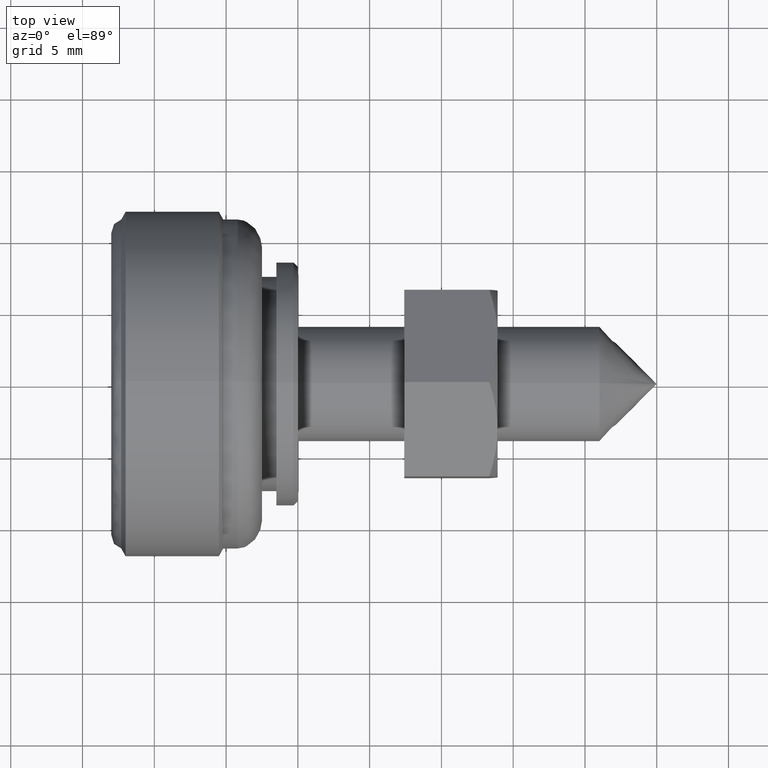
[diagram: clean part render]
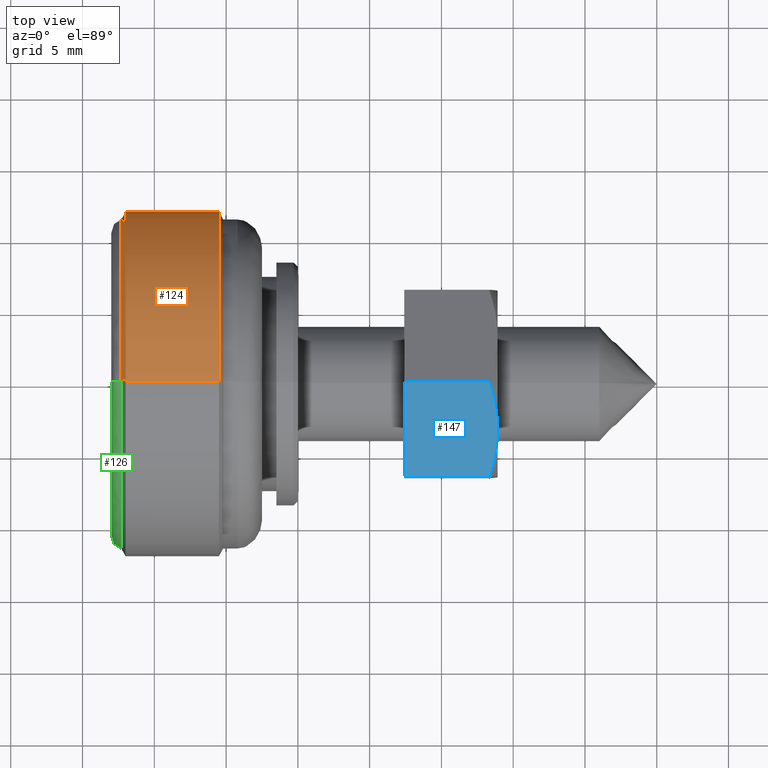
[diagram: same view with three faces highlighted in distinct colors, each labeled with its STEP entity id]
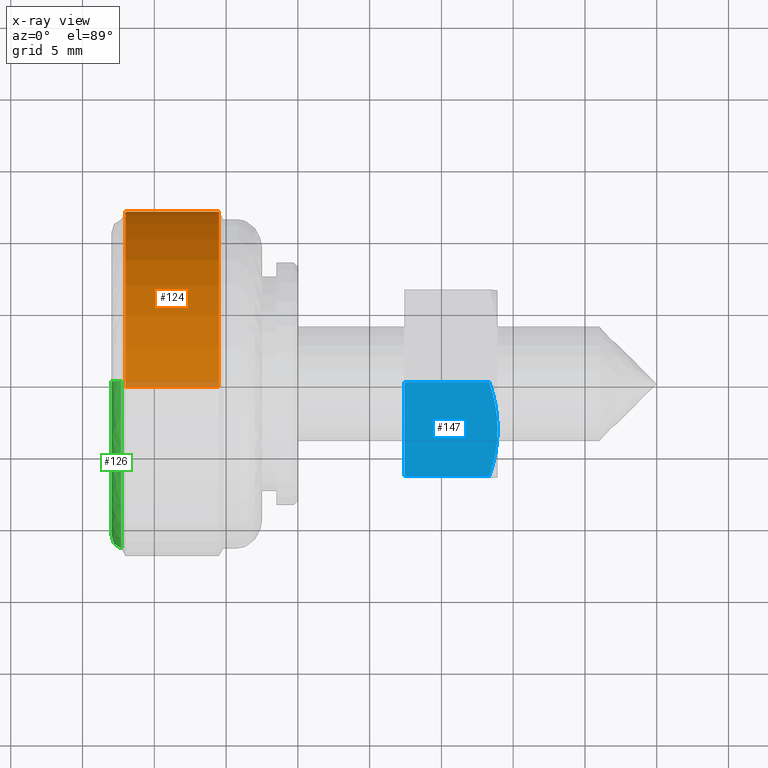
[diagram: x-ray of the same camera — body ghosted, the three highlighted faces saturated]
A machine part, top view with three faces highlighted in distinct colors.
The next image is the same camera in x-ray (body ghosted, the three faces saturated) — at least one of them is partly hidden behind the body in this view.
Their STEP definitions:

[orange] entity #124 — the highlighted cylindrical surface (partial cylindrical patch) has radius 12 mm, axis along (1, 0, 0).
#124=ADVANCED_FACE('',(#278),#277,.T.);
#277=CYLINDRICAL_SURFACE('',#711,1.20000000000E+01);
#278=FACE_OUTER_BOUND('',#712,.T.);
#708=CARTESIAN_POINT('',(0.00000000000E+00,0.00000000000E+00,0.00000000000E+00));
#709=DIRECTION('',(1.00000000000E+00,-0.00000000000E+00,-0.00000000000E+00));
#710=DIRECTION('',(-0.00000000000E+00,-0.00000000000E+00,-1.00000000000E+00));
#711=AXIS2_PLACEMENT_3D('',#708,#709,#710);
#712=EDGE_LOOP('',(#982,#983,#984,#985));
#982=ORIENTED_EDGE('',*,*,#1144,.T.);
#983=ORIENTED_EDGE('',*,*,#1145,.F.);
#984=ORIENTED_EDGE('',*,*,#1143,.F.);
#985=ORIENTED_EDGE('',*,*,#1146,.T.);
#1143=EDGE_CURVE('',#1366,#1365,#1399,.T.);
#1144=EDGE_CURVE('',#1405,#1406,#1407,.T.);
#1145=EDGE_CURVE('',#1365,#1406,#1413,.T.);
#1146=EDGE_CURVE('',#1366,#1405,#1419,.T.);
#1365=VERTEX_POINT('',#1890);
#1366=VERTEX_POINT('',#1891);
#1399=CIRCLE('',#1913,1.20000000000E+01);
#1405=VERTEX_POINT('',#1914);
#1406=VERTEX_POINT('',#1915);
#1407=CIRCLE('',#1919,1.20000000000E+01);
#1413=(BOUNDED_CURVE() B_SPLINE_CURVE(1,(#1920,#1921),.UNSPECIFIED.,.F.,.F.) B_SPLINE_CURVE_WITH_KNOTS((2,2),(8.33333347523E-02,9.16666664312E-01),.UNSPECIFIED.) CURVE() GEOMETRIC_REPRESENTATION_ITEM() RATIONAL_B_SPLINE_CURVE((1.00000000000E+00,1.00000000000E+00)) REPRESENTATION_ITEM('') );
#1419=(BOUNDED_CURVE() B_SPLINE_CURVE(1,(#1922,#1923),.UNSPECIFIED.,.F.,.F.) B_SPLINE_CURVE_WITH_KNOTS((2,2),(8.33333333333E-02,9.16666666667E-01),.UNSPECIFIED.) CURVE() GEOMETRIC_REPRESENTATION_ITEM() RATIONAL_B_SPLINE_CURVE((7.50000000000E-01,7.50000000000E-01)) REPRESENTATION_ITEM('') );
#1890=CARTESIAN_POINT('',(-3.70000000000E+01,-5.92118946467E-16,-1.20000000000E+01));
#1891=CARTESIAN_POINT('',(-3.70000000000E+01,0.00000000000E+00,1.20000000000E+01));
#1910=CARTESIAN_POINT('',(-3.70000000000E+01,0.00000000000E+00,0.00000000000E+00));
#1911=DIRECTION('',(-1.00000000000E+00,0.00000000000E+00,0.00000000000E+00));
#1912=DIRECTION('',(0.00000000000E+00,-1.22460635382E-16,1.00000000000E+00));
#1913=AXIS2_PLACEMENT_3D('',#1910,#1911,#1912);
#1914=CARTESIAN_POINT('',(-3.05000000000E+01,0.00000000000E+00,1.20000000000E+01));
#1915=CARTESIAN_POINT('',(-3.05000000000E+01,-1.29674049276E-13,-1.20000000000E+01));
#1916=CARTESIAN_POINT('',(-3.05000000000E+01,0.00000000000E+00,0.00000000000E+00));
#1917=DIRECTION('',(-1.00000000000E+00,0.00000000000E+00,0.00000000000E+00));
#1918=DIRECTION('',(0.00000000000E+00,-1.22460635382E-16,1.00000000000E+00));
#1919=AXIS2_PLACEMENT_3D('',#1916,#1917,#1918);
#1920=CARTESIAN_POINT('',(-3.69999999889E+01,0.00000000000E+00,-1.20000000000E+01));
#1921=CARTESIAN_POINT('',(-3.05000000184E+01,0.00000000000E+00,-1.20000000000E+01));
#1922=CARTESIAN_POINT('',(-3.70000000000E+01,-5.92118946467E-16,1.20000000000E+01));
#1923=CARTESIAN_POINT('',(-3.05000000000E+01,-5.92118946467E-16,1.20000000000E+01));

[blue] entity #147 — the highlighted planar face has unit normal (0, -0.5, 0.866).
#147=ADVANCED_FACE('',(#509),#508,.T.);
#508=PLANE('',#901);
#509=FACE_OUTER_BOUND('',#902,.T.);
#898=CARTESIAN_POINT('',(-7.88083117444E+00,6.50000000000E-01,-6.50000000000E-01));
#899=DIRECTION('',(-8.66025403784E-01,-5.00000000000E-01,0.00000000000E+00));
#900=DIRECTION('',(5.00000000000E-01,-8.66025403784E-01,0.00000000000E+00));
#901=AXIS2_PLACEMENT_3D('',#898,#899,#900);
#902=EDGE_LOOP('',(#1079,#1080,#1081,#1082,#1083));
#1079=ORIENTED_EDGE('',*,*,#1189,.T.);
#1080=ORIENTED_EDGE('',*,*,#1191,.T.);
#1081=ORIENTED_EDGE('',*,*,#1192,.T.);
#1082=ORIENTED_EDGE('',*,*,#1193,.F.);
#1083=ORIENTED_EDGE('',*,*,#1194,.T.);
#1189=EDGE_CURVE('',#1699,#1692,#1700,.T.);
#1191=EDGE_CURVE('',#1692,#1612,#1712,.T.);
#1192=EDGE_CURVE('',#1612,#1718,#1719,.T.);
#1193=EDGE_CURVE('',#1725,#1718,#1726,.T.);
#1194=EDGE_CURVE('',#1725,#1699,#1732,.T.);
#1612=VERTEX_POINT('',#2054);
#1692=VERTEX_POINT('',#2103);
#1699=VERTEX_POINT('',#2110);
#1700=LINE('',#2111,#2112);
#1712=(BOUNDED_CURVE() B_SPLINE_CURVE(3,(#2117,#2118,#2119,#2120,#2121,#2122),.UNSPECIFIED.,.F.,.F.) B_SPLINE_CURVE_WITH_KNOTS((4,2,4),(2.38073300314E-07,1.89883593793E-03,3.79743380255E-03),.UNSPECIFIED.) CURVE() GEOMETRIC_REPRESENTATION_ITEM() RATIONAL_B_SPLINE_CURVE((1.00000000000E+00,1.00000000000E+00,1.00000000000E+00,1.00000000000E+00,1.00000000000E+00,1.00000000000E+00)) REPRESENTATION_ITEM('') );
#1718=VERTEX_POINT('',#2123);
#1719=(BOUNDED_CURVE() B_SPLINE_CURVE(3,(#2124,#2125,#2126,#2127,#2128,#2129,#2130,#2131),.UNSPECIFIED.,.F.,.F.) B_SPLINE_CURVE_WITH_KNOTS((4,2,2,4),(3.79743380255E-03,4.74318397059E-03,5.68893413862E-03,7.58043447468E-03),.UNSPECIFIED.) CURVE() GEOMETRIC_REPRESENTATION_ITEM() RATIONAL_B_SPLINE_CURVE((1.00000000000E+00,1.00000000000E+00,1.00000000000E+00,1.00000000000E+00,1.00000000000E+00,1.00000000000E+00,1.00000000000E+00,1.00000000000E+00)) REPRESENTATION_ITEM('') );
#1725=VERTEX_POINT('',#2132);
#1726=LINE('',#2133,#2134);
#1732=LINE('',#2136,#2137);
#2054=CARTESIAN_POINT('',(-5.62916512460E+00,-3.25000000000E+00,6.50000000000E+00));
#2103=CARTESIAN_POINT('',(-3.75277674973E+00,-6.50000000000E+00,5.91944341640E+00));
#2110=CARTESIAN_POINT('',(-3.75277674973E+00,-6.50000000000E+00,0.00000000000E+00));
#2111=CARTESIAN_POINT('',(-3.75277674973E+00,-6.50000000000E+00,0.00000000000E+00));
#2112=VECTOR('',#2113,5.91944341640E+00);
#2113=DIRECTION('',(0.00000000000E+00,0.00000000000E+00,1.00000000000E+00));
#2117=CARTESIAN_POINT('',(-3.75277674973E+00,-6.50000000000E+00,5.91944341640E+00));
#2118=CARTESIAN_POINT('',(-4.05972899063E+00,-5.96834312327E+00,6.09666237531E+00));
#2119=CARTESIAN_POINT('',(-4.36892343468E+00,-5.43280263676E+00,6.24266455419E+00));
#2120=CARTESIAN_POINT('',(-4.99377667999E+00,-4.35052506861E+00,6.44466974421E+00));
#2121=CARTESIAN_POINT('',(-5.30948380315E+00,-3.80370429098E+00,6.50000000000E+00));
#2122=CARTESIAN_POINT('',(-5.62916512460E+00,-3.25000000000E+00,6.50000000000E+00));
#2123=CARTESIAN_POINT('',(-7.50555349947E+00,1.30104260698E-15,5.91944341640E+00));
#2124=CARTESIAN_POINT('',(-5.62916512460E+00,-3.25000000000E+00,6.50000000000E+00));
#2125=CARTESIAN_POINT('',(-5.78840825297E+00,-2.97418281091E+00,6.50000000000E+00));
#2126=CARTESIAN_POINT('',(-5.94836544724E+00,-2.69712882339E+00,6.48627779102E+00));
#2127=CARTESIAN_POINT('',(-6.26479417374E+00,-2.14905819212E+00,6.43317445864E+00));
#2128=CARTESIAN_POINT('',(-6.42195020981E+00,-1.87685595293E+00,6.39384437883E+00));
#2129=CARTESIAN_POINT('',(-6.89062709127E+00,-1.06508378191E+00,6.24215241637E+00));
#2130=CARTESIAN_POINT('',(-7.19936757066E+00,-5.30329585257E-01,6.09621994482E+00));
#2131=CARTESIAN_POINT('',(-7.50555349947E+00,4.03789283081E-14,5.91944341640E+00));
#2132=CARTESIAN_POINT('',(-7.50555349947E+00,8.88178419700E-16,0.00000000000E+00));
#2133=CARTESIAN_POINT('',(-7.50555349947E+00,8.88178419700E-16,0.00000000000E+00));
#2134=VECTOR('',#2135,5.91944341640E+00);
#2135=DIRECTION('',(0.00000000000E+00,0.00000000000E+00,1.00000000000E+00));
#2136=CARTESIAN_POINT('',(-7.50555349947E+00,1.11022302463E-15,0.00000000000E+00));
#2137=VECTOR('',#2138,7.50555349947E+00);
#2138=DIRECTION('',(5.00000000000E-01,-8.66025403784E-01,0.00000000000E+00));

[green] entity #126 — the highlighted face is a freeform B-spline surface patch.
#126=ADVANCED_FACE('',(#298),#297,.T.);
#297=( BOUNDED_SURFACE() B_SPLINE_SURFACE( 2,2,((#718,#719,#720,#721,#722),(#723,#724,#725,#726,#727),(#728,#729,#730,#731,#732),(#733,#734,#735,#736,#737),(#738,#739,#740,#741,#742)), .UNSPECIFIED.,.F.,.F.,.F.) B_SPLINE_SURFACE_WITH_KNOTS((3,2,3),(3,2,3),(0.00000000000E+00,5.00000000000E-01,1.00000000000E+00),(0.00000000000E+00,5.00000000000E-01,1.00000000000E+00), .UNSPECIFIED. ) GEOMETRIC_REPRESENTATION_ITEM() RATIONAL_B_SPLINE_SURFACE(((1.00000000000E+00,8.06216785087E-01,1.00000000000E+00,8.06216785087E-01,1.00000000000E+00),(7.07106781187E-01,5.70081355842E-01,7.07106781187E-01,5.70081355842E-01,7.07106781187E-01),(1.00000000000E+00,8.06216785087E-01,1.00000000000E+00,8.06216785087E-01,1.00000000000E+00),(7.07106781187E-01,5.70081355842E-01,7.07106781187E-01,5.70081355842E-01,7.07106781187E-01),(1.00000000000E+00,8.06216785087E-01,1.00000000000E+00,8.06216785087E-01,1.00000000000E+00))) REPRESENTATION_ITEM('') SURFACE() );
#298=FACE_OUTER_BOUND('',#743,.T.);
#718=CARTESIAN_POINT('',(-3.72999710091E+01,-1.40830322396E-15,-1.15000483181E+01));
#719=CARTESIAN_POINT('',(-3.80000000000E+01,-1.38134650866E-15,-1.12799227633E+01));
#720=CARTESIAN_POINT('',(-3.80000000000E+01,-1.29148210680E-15,-1.05461000000E+01));
#721=CARTESIAN_POINT('',(-3.80000000000E+01,-1.20161770495E-15,-9.81227723665E+00));
#722=CARTESIAN_POINT('',(-3.72999710091E+01,-1.17466098964E-15,-9.59215168183E+00));
#723=CARTESIAN_POINT('',(-3.72999710091E+01,-1.15000483181E+01,-1.15000483181E+01));
#724=CARTESIAN_POINT('',(-3.80000000000E+01,-1.12799227633E+01,-1.12799227633E+01));
#725=CARTESIAN_POINT('',(-3.80000000000E+01,-1.05461000000E+01,-1.05461000000E+01));
#726=CARTESIAN_POINT('',(-3.80000000000E+01,-9.81227723665E+00,-9.81227723665E+00));
#727=CARTESIAN_POINT('',(-3.72999710091E+01,-9.59215168183E+00,-9.59215168183E+00));
#728=CARTESIAN_POINT('',(-3.72999710091E+01,-1.15000483181E+01,7.04128355822E-16));
#729=CARTESIAN_POINT('',(-3.80000000000E+01,-1.12799227633E+01,6.90650443321E-16));
#730=CARTESIAN_POINT('',(-3.80000000000E+01,-1.05461000000E+01,6.45719726379E-16));
#731=CARTESIAN_POINT('',(-3.80000000000E+01,-9.81227723665E+00,6.00789009436E-16));
#732=CARTESIAN_POINT('',(-3.72999710091E+01,-9.59215168183E+00,5.87311096935E-16));
#733=CARTESIAN_POINT('',(-3.72999710091E+01,-1.15000483181E+01,1.15000483181E+01));
#734=CARTESIAN_POINT('',(-3.80000000000E+01,-1.12799227633E+01,1.12799227633E+01));
#735=CARTESIAN_POINT('',(-3.80000000000E+01,-1.05461000000E+01,1.05461000000E+01));
#736=CARTESIAN_POINT('',(-3.80000000000E+01,-9.81227723665E+00,9.81227723665E+00));
#737=CARTESIAN_POINT('',(-3.72999710091E+01,-9.59215168183E+00,9.59215168183E+00));
#738=CARTESIAN_POINT('',(-3.72999710091E+01,-4.65123191464E-20,1.15000483181E+01));
#739=CARTESIAN_POINT('',(-3.80000000000E+01,-4.56220141864E-20,1.12799227633E+01));
#740=CARTESIAN_POINT('',(-3.80000000000E+01,-4.26540441728E-20,1.05461000000E+01));
#741=CARTESIAN_POINT('',(-3.80000000000E+01,-3.96860741591E-20,9.81227723665E+00));
#742=CARTESIAN_POINT('',(-3.72999710091E+01,-3.87957691991E-20,9.59215168183E+00));
#743=EDGE_LOOP('',(#990,#991,#992,#993));
#990=ORIENTED_EDGE('',*,*,#1123,.F.);
#991=ORIENTED_EDGE('',*,*,#1148,.F.);
#992=ORIENTED_EDGE('',*,*,#1140,.T.);
#993=ORIENTED_EDGE('',*,*,#1149,.T.);
#1123=EDGE_CURVE('',#1259,#1258,#1266,.T.);
#1140=EDGE_CURVE('',#1380,#1373,#1381,.T.);
#1148=EDGE_CURVE('',#1380,#1259,#1431,.T.);
#1149=EDGE_CURVE('',#1373,#1258,#1437,.T.);
#1258=VERTEX_POINT('',#1823);
#1259=VERTEX_POINT('',#1824);
#1266=CIRCLE('',#1832,1.05461000000E+01);
#1373=VERTEX_POINT('',#1896);
#1380=VERTEX_POINT('',#1899);
#1381=CIRCLE('',#1903,1.15000483181E+01);
#1431=(BOUNDED_CURVE() B_SPLINE_CURVE(2,(#1928,#1929,#1930),.UNSPECIFIED.,.F.,.F.) B_SPLINE_CURVE_WITH_KNOTS((3,3),(0.00000000000E+00,5.00000000000E-01),.UNSPECIFIED.) CURVE() GEOMETRIC_REPRESENTATION_ITEM() RATIONAL_B_SPLINE_CURVE((1.00000000000E+00,8.06216785087E-01,1.00000000000E+00)) REPRESENTATION_ITEM('') );
#1437=(BOUNDED_CURVE() B_SPLINE_CURVE(3,(#1931,#1932,#1933,#1934),.UNSPECIFIED.,.F.,.F.) B_SPLINE_CURVE_WITH_KNOTS((4,4),(0.00000000000E+00,5.00000000527E-01),.UNSPECIFIED.) CURVE() GEOMETRIC_REPRESENTATION_ITEM() RATIONAL_B_SPLINE_CURVE((1.00000000000E+00,1.00000000000E+00,1.00000000000E+00,1.00000000000E+00)) REPRESENTATION_ITEM('') );
#1823=CARTESIAN_POINT('',(-3.80000000000E+01,0.00000000000E+00,1.05461000000E+01));
#1824=CARTESIAN_POINT('',(-3.80000000000E+01,5.92118946467E-16,-1.05461000000E+01));
#1829=CARTESIAN_POINT('',(-3.80000000000E+01,0.00000000000E+00,0.00000000000E+00));
#1830=DIRECTION('',(-1.00000000000E+00,0.00000000000E+00,0.00000000000E+00));
#1831=DIRECTION('',(0.00000000000E+00,-1.22460635382E-16,1.00000000000E+00));
#1832=AXIS2_PLACEMENT_3D('',#1829,#1830,#1831);
#1896=CARTESIAN_POINT('',(-3.72999710091E+01,0.00000000000E+00,1.15000483181E+01));
#1899=CARTESIAN_POINT('',(-3.72999710091E+01,1.18423789293E-15,-1.15000483181E+01));
#1900=CARTESIAN_POINT('',(-3.72999710091E+01,0.00000000000E+00,0.00000000000E+00));
#1901=DIRECTION('',(-1.00000000000E+00,0.00000000000E+00,0.00000000000E+00));
#1902=DIRECTION('',(0.00000000000E+00,-1.22460635382E-16,1.00000000000E+00));
#1903=AXIS2_PLACEMENT_3D('',#1900,#1901,#1902);
#1928=CARTESIAN_POINT('',(-3.72999710091E+01,-1.40830322396E-15,-1.15000483181E+01));
#1929=CARTESIAN_POINT('',(-3.80000000000E+01,-1.38134650866E-15,-1.12799227633E+01));
#1930=CARTESIAN_POINT('',(-3.80000000000E+01,-1.29148210680E-15,-1.05461000000E+01));
#1931=CARTESIAN_POINT('',(-3.72999710091E+01,5.92118946467E-16,1.15000483181E+01));
#1932=CARTESIAN_POINT('',(-3.77416223806E+01,1.57219051210E-15,1.13349269718E+01));
#1933=CARTESIAN_POINT('',(-3.79749653776E+01,1.76956349462E-15,1.10169441987E+01));
#1934=CARTESIAN_POINT('',(-3.80000000000E+01,1.18423789404E-15,1.05460999987E+01));